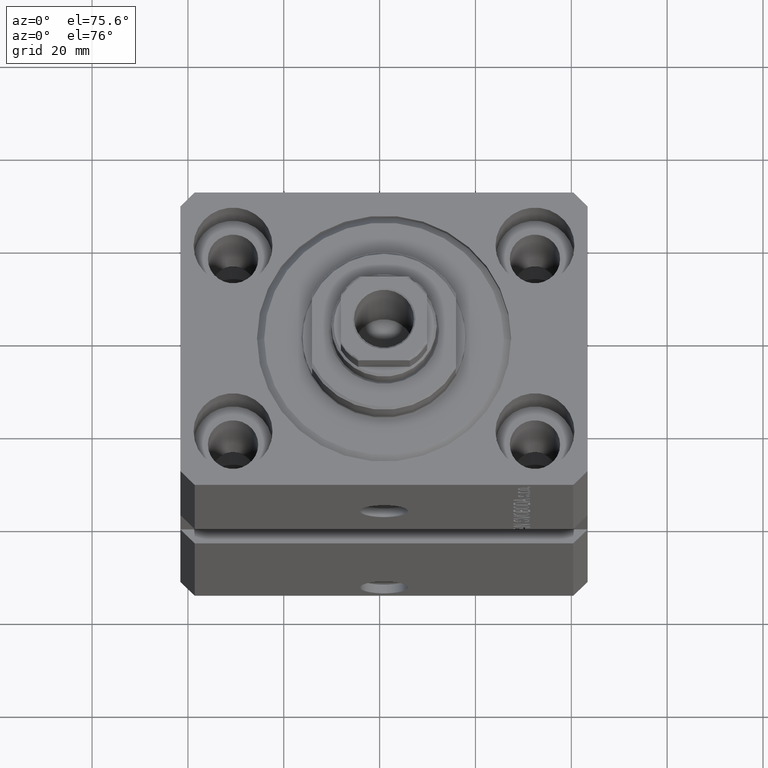
[diagram: clean part render]
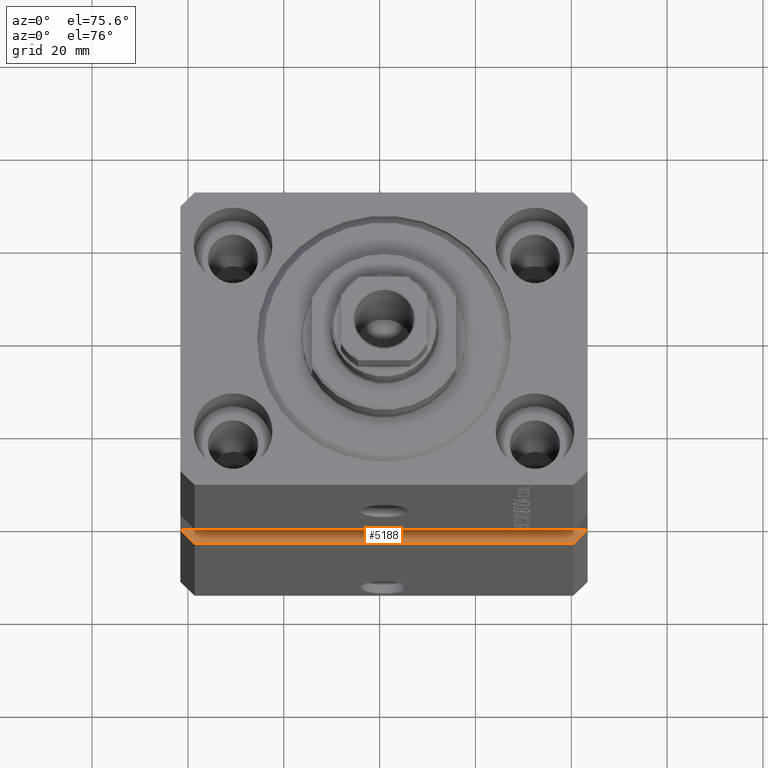
[diagram: same view with one face highlighted and labeled with its STEP entity id]
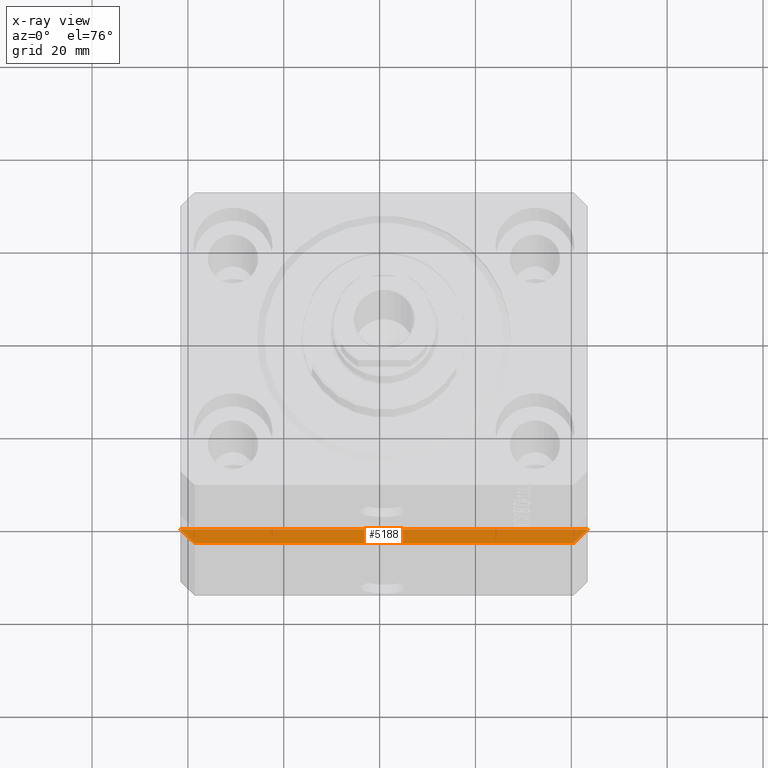
[diagram: x-ray of the same camera — body ghosted, the highlighted face saturated]
A machine part, auxiliary view. The second image highlights one B-rep face of the part: STEP entity #5188.
The next image is the same camera in x-ray: the body ghosted, the highlighted face saturated — about 0% of this face is hidden behind the body in this view.
In plain terms, the highlighted planar face has unit normal (0, 0, -1).
Its self-contained STEP definition (entity closure, byte-faithful):
#983 = DIRECTION ( 'NONE',  ( 0.7071067811865483499, 0.7071067811865466846, 0.000000000000000000 ) ) ;
#3644 = CARTESIAN_POINT ( 'NONE',  ( 39.50000000000001421, -31.49999999999999289, -48.99999999999999289 ) ) ;
#5093 = ORIENTED_EDGE ( 'NONE', *, *, #18986, .F. ) ;
#5188 = ADVANCED_FACE ( 'NONE', ( #7083 ), #10713, .F. ) ;
#7083 = FACE_OUTER_BOUND ( 'NONE', #18776, .T. ) ;
#10713 = PLANE ( 'NONE',  #37978 ) ;
#11048 = VECTOR ( 'NONE', #983, 1000.000000000000000 ) ;
#11900 = CARTESIAN_POINT ( 'NONE',  ( -42.50000000000000000, -31.50000000000000711, -48.99999999999999289 ) ) ;
#12847 = EDGE_CURVE ( 'NONE', #30051, #43616, #42949, .T. ) ;
#13736 = EDGE_CURVE ( 'NONE', #15398, #30051, #43191, .T. ) ;
#15001 = LINE ( 'NONE', #39228, #36354 ) ;
#15398 = VERTEX_POINT ( 'NONE', #38458 ) ;
#15584 = CARTESIAN_POINT ( 'NONE',  ( -39.50000000000000000, -31.50000000000000711, -48.99999999999999289 ) ) ;
#16980 = ORIENTED_EDGE ( 'NONE', *, *, #23967, .T. ) ;
#18776 = EDGE_LOOP ( 'NONE', ( #16980, #5093, #24125, #32230 ) ) ;
#18986 = EDGE_CURVE ( 'NONE', #15398, #28492, #15001, .T. ) ;
#20900 = CARTESIAN_POINT ( 'NONE',  ( -42.50000000000000000, -28.50000000000000711, -48.99999999999999289 ) ) ;
#23967 = EDGE_CURVE ( 'NONE', #43616, #28492, #24332, .T. ) ;
#24125 = ORIENTED_EDGE ( 'NONE', *, *, #13736, .T. ) ;
#24332 = LINE ( 'NONE', #38171, #11048 ) ;
#28492 = VERTEX_POINT ( 'NONE', #38698 ) ;
#29722 = VECTOR ( 'NONE', #39782, 1000.000000000000000 ) ;
#30051 = VERTEX_POINT ( 'NONE', #15584 ) ;
#32230 = ORIENTED_EDGE ( 'NONE', *, *, #12847, .T. ) ;
#35493 = VECTOR ( 'NONE', #36369, 1000.000000000000000 ) ;
#35600 = DIRECTION ( 'NONE',  ( 1.000000000000000000, 1.632680918566406300E-16, 0.000000000000000000 ) ) ;
#36354 = VECTOR ( 'NONE', #35600, 1000.000000000000000 ) ;
#36369 = DIRECTION ( 'NONE',  ( 1.000000000000000000, 1.632680918566406300E-16, 0.000000000000000000 ) ) ;
#37691 = DIRECTION ( 'NONE',  ( -1.000000000000000000, 0.000000000000000000, -0.000000000000000000 ) ) ;
#37978 = AXIS2_PLACEMENT_3D ( 'NONE', #20900, #41764, #37691 ) ;
#38171 = CARTESIAN_POINT ( 'NONE',  ( 39.50000000000000711, -31.50000000000000000, -48.99999999999999289 ) ) ;
#38458 = CARTESIAN_POINT ( 'NONE',  ( -42.50000000000000000, -28.50000000000000711, -48.99999999999999289 ) ) ;
#38698 = CARTESIAN_POINT ( 'NONE',  ( 42.50000000000001421, -28.49999999999999289, -48.99999999999999289 ) ) ;
#39228 = CARTESIAN_POINT ( 'NONE',  ( -42.50000000000000000, -28.50000000000000711, -48.99999999999999289 ) ) ;
#39782 = DIRECTION ( 'NONE',  ( 0.7071067811865471286, -0.7071067811865479058, 0.000000000000000000 ) ) ;
#41764 = DIRECTION ( 'NONE',  ( 0.000000000000000000, 0.000000000000000000, -1.000000000000000000 ) ) ;
#42949 = LINE ( 'NONE', #11900, #35493 ) ;
#42960 = CARTESIAN_POINT ( 'NONE',  ( -42.50000000000000000, -28.50000000000000000, -48.99999999999999289 ) ) ;
#43191 = LINE ( 'NONE', #42960, #29722 ) ;
#43616 = VERTEX_POINT ( 'NONE', #3644 ) ;